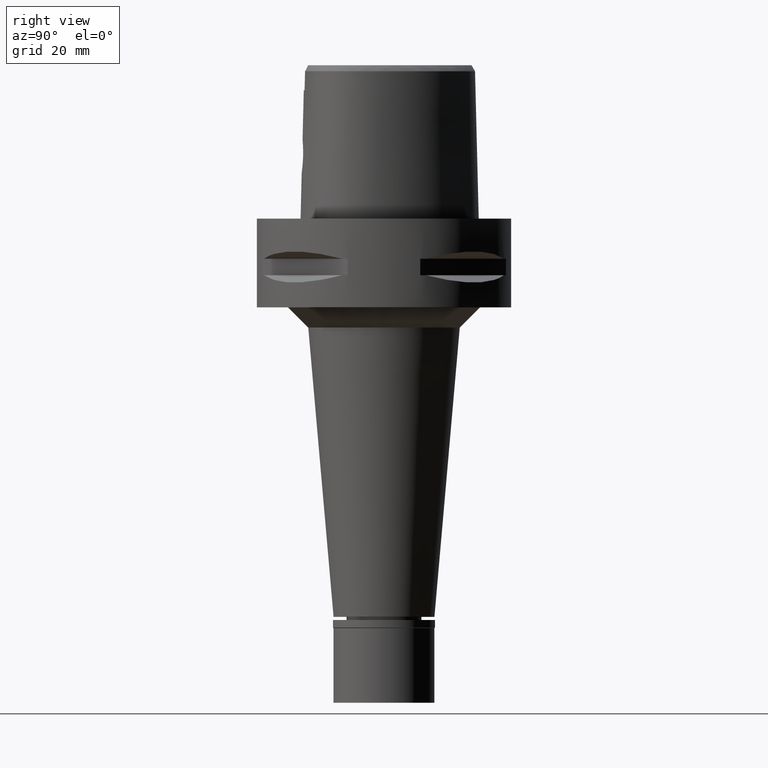
[diagram: clean part render]
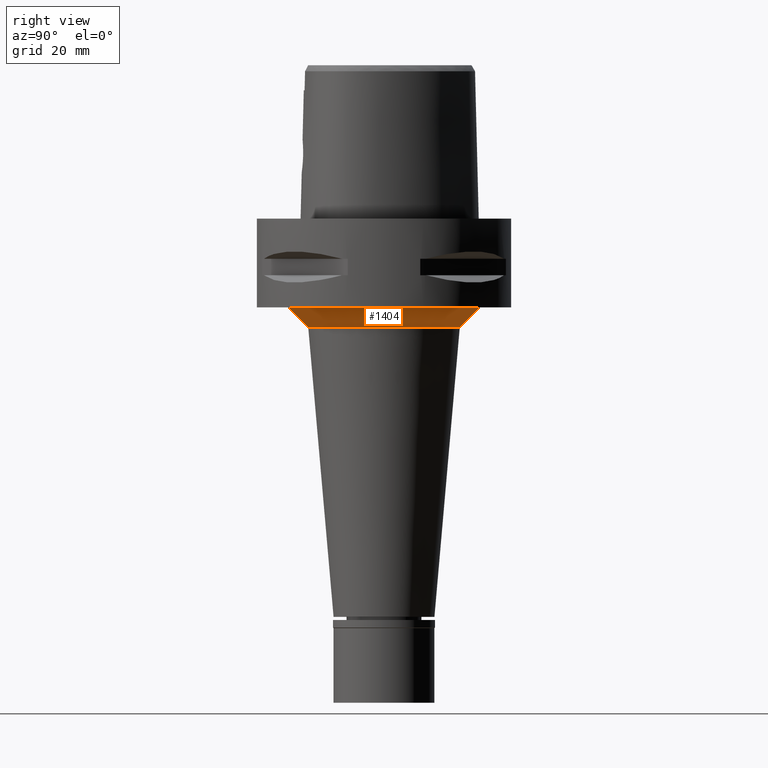
[diagram: same view with one face highlighted and labeled with its STEP entity id]
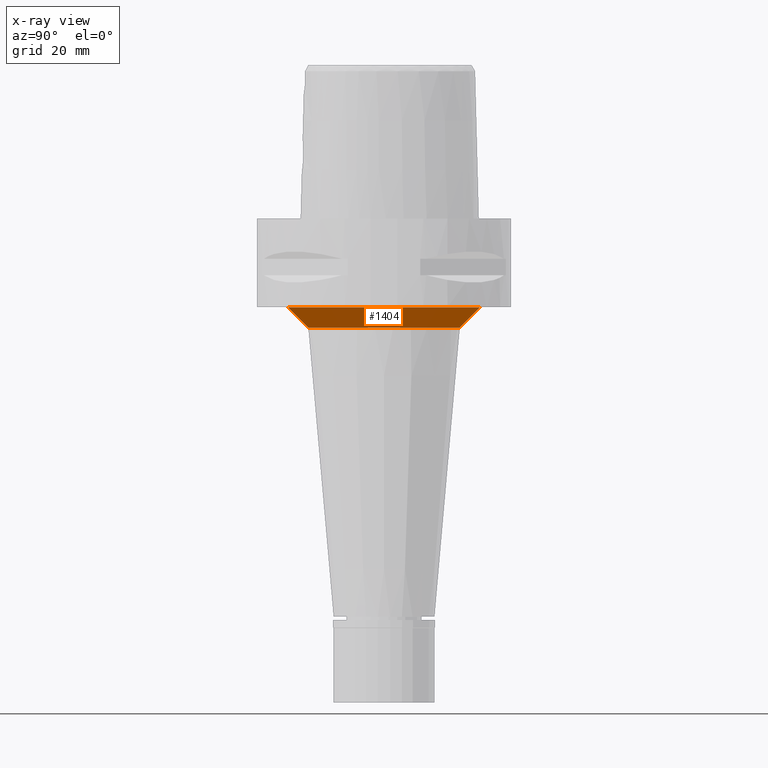
[diagram: x-ray of the same camera — body ghosted, the highlighted face saturated]
A machine part, right view. The second image highlights one B-rep face of the part: STEP entity #1404.
The next image is the same camera in x-ray: the body ghosted, the highlighted face saturated — about 0% of this face is hidden behind the body in this view.
In plain terms, the highlighted conical surface has half-angle 45 deg.
Its self-contained STEP definition (entity closure, byte-faithful):
#77 = CARTESIAN_POINT ( 'NONE',  ( 0.0000000000000000000, 23.77293717480999646, -22.00000000000000000 ) ) ;
#122 = DIRECTION ( 'NONE',  ( 0.0000000000000000000, 0.0000000000000000000, 1.000000000000000000 ) ) ;
#199 = CARTESIAN_POINT ( 'NONE',  ( 0.0000000000000000000, 0.0000000000000000000, -27.00000000000000000 ) ) ;
#346 = VERTEX_POINT ( 'NONE', #3609 ) ;
#442 = AXIS2_PLACEMENT_3D ( 'NONE', #1808, #3032, #4675 ) ;
#444 = ORIENTED_EDGE ( 'NONE', *, *, #1595, .T. ) ;
#827 = DIRECTION ( 'NONE',  ( 0.0000000000000000000, 1.000000000000000000, 0.0000000000000000000 ) ) ;
#1339 = VERTEX_POINT ( 'NONE', #4884 ) ;
#1404 = ADVANCED_FACE ( 'NONE', ( #3838 ), #2783, .T. ) ;
#1564 = VECTOR ( 'NONE', #4009, 1000.000000000000000 ) ;
#1595 = EDGE_CURVE ( 'NONE', #1880, #4481, #3941, .T. ) ;
#1695 = AXIS2_PLACEMENT_3D ( 'NONE', #2333, #3620, #827 ) ;
#1718 = DIRECTION ( 'NONE',  ( 0.0000000000000000000, -1.000000000000000000, 0.0000000000000000000 ) ) ;
#1808 = CARTESIAN_POINT ( 'NONE',  ( 0.0000000000000000000, 0.0000000000000000000, -24.50000000000000000 ) ) ;
#1873 = VECTOR ( 'NONE', #3934, 1000.000000000000000 ) ;
#1880 = VERTEX_POINT ( 'NONE', #2061 ) ;
#2009 = ORIENTED_EDGE ( 'NONE', *, *, #3165, .T. ) ;
#2061 = CARTESIAN_POINT ( 'NONE',  ( 0.0000000000000000000, 23.77293717480999646, -22.00000000000000000 ) ) ;
#2333 = CARTESIAN_POINT ( 'NONE',  ( 0.0000000000000000000, 0.0000000000000000000, -22.00000000000000000 ) ) ;
#2352 = ORIENTED_EDGE ( 'NONE', *, *, #4820, .F. ) ;
#2381 = AXIS2_PLACEMENT_3D ( 'NONE', #199, #122, #1718 ) ;
#2692 = CARTESIAN_POINT ( 'NONE',  ( 0.0000000000000000000, -23.77293717480999646, -22.00000000000000000 ) ) ;
#2783 = CONICAL_SURFACE ( 'NONE', #442, 21.27293717481000002, 0.7853981633972997312 ) ;
#2877 = ORIENTED_EDGE ( 'NONE', *, *, #3669, .T. ) ;
#3032 = DIRECTION ( 'NONE',  ( 0.0000000000000000000, 0.0000000000000000000, 1.000000000000000000 ) ) ;
#3069 = EDGE_LOOP ( 'NONE', ( #444, #2009, #2877, #2352 ) ) ;
#3165 = EDGE_CURVE ( 'NONE', #4481, #346, #3859, .T. ) ;
#3609 = CARTESIAN_POINT ( 'NONE',  ( 0.0000000000000000000, -18.77293717481000002, -27.00000000000000000 ) ) ;
#3620 = DIRECTION ( 'NONE',  ( 0.0000000000000000000, 0.0000000000000000000, -1.000000000000000000 ) ) ;
#3649 = LINE ( 'NONE', #77, #1564 ) ;
#3669 = EDGE_CURVE ( 'NONE', #346, #1339, #3954, .T. ) ;
#3838 = FACE_OUTER_BOUND ( 'NONE', #3069, .T. ) ;
#3859 = LINE ( 'NONE', #2692, #1873 ) ;
#3934 = DIRECTION ( 'NONE',  ( 0.0000000000000000000, 0.7071067811867980391, -0.7071067811862969954 ) ) ;
#3941 = CIRCLE ( 'NONE', #1695, 23.77293717480999646 ) ;
#3954 = CIRCLE ( 'NONE', #2381, 18.77293717479999913 ) ;
#4009 = DIRECTION ( 'NONE',  ( 0.0000000000000000000, -0.7071067811867980391, -0.7071067811862969954 ) ) ;
#4455 = CARTESIAN_POINT ( 'NONE',  ( 0.0000000000000000000, -23.77293717480999646, -22.00000000000000000 ) ) ;
#4481 = VERTEX_POINT ( 'NONE', #4455 ) ;
#4675 = DIRECTION ( 'NONE',  ( 0.0000000000000000000, 1.000000000000000000, 0.0000000000000000000 ) ) ;
#4820 = EDGE_CURVE ( 'NONE', #1880, #1339, #3649, .T. ) ;
#4884 = CARTESIAN_POINT ( 'NONE',  ( 0.0000000000000000000, 18.77293717481000002, -27.00000000000000000 ) ) ;